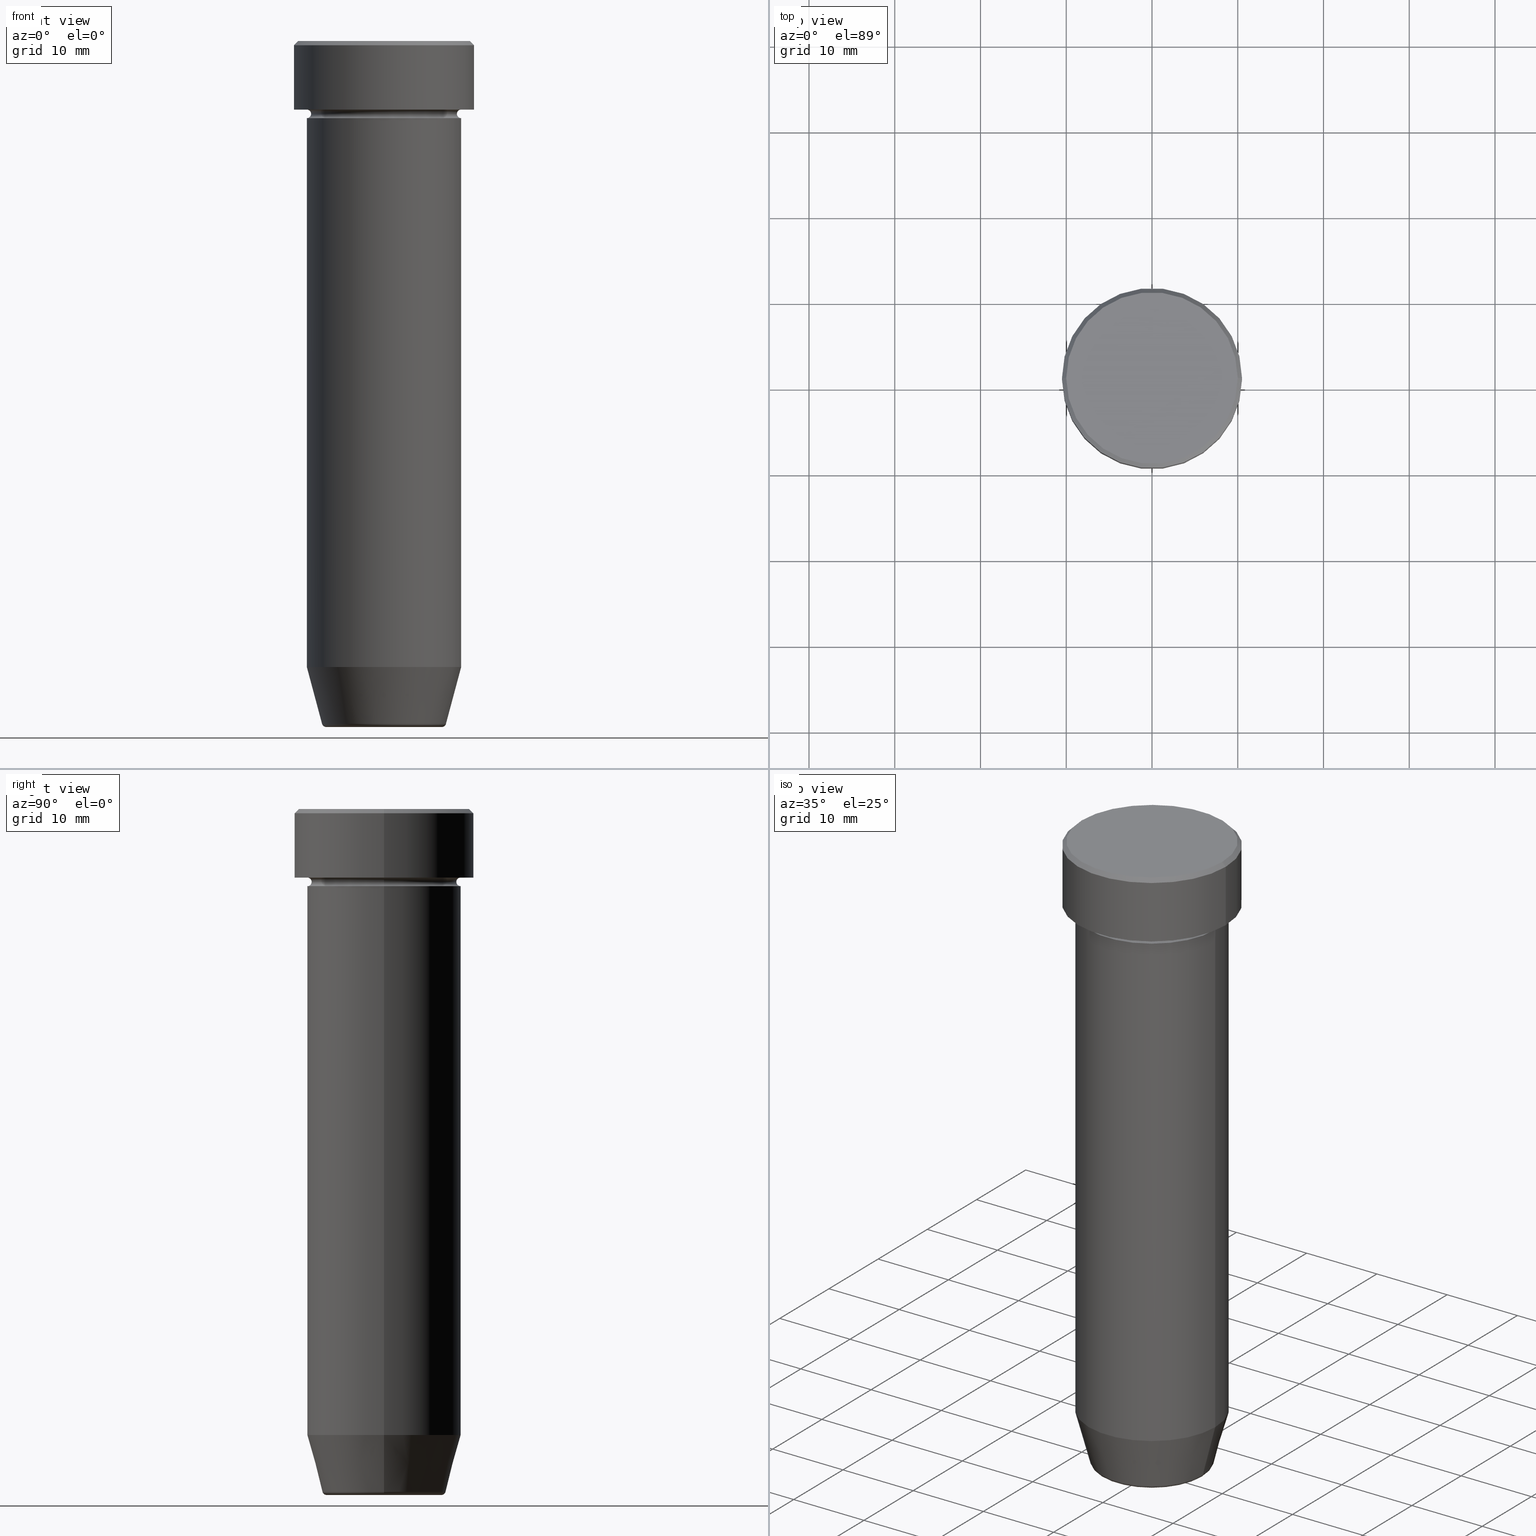
[diagram: canonical four-view strip — front | top / right | iso, engineering-drawing reading convention]
A machine part, canonical four-view strip (front | top / right | iso — engineering-drawing reading convention). The complete STEP part file that produces these views, byte-faithful:
ISO-10303-21;
HEADER;
FILE_DESCRIPTION (( 'STEP AP203' ),
    '1' );
FILE_NAME ('7d79.STEP',
    '2024-01-02T22:08:46',
    ( '' ),
    ( '' ),
    'SwSTEP 2.0',
    'SolidWorks 2019',
    '' );
FILE_SCHEMA (( 'CONFIG_CONTROL_DESIGN' ));
ENDSEC;

DATA;
#1 = FACE_OUTER_BOUND ( 'NONE', #221, .T. ) ;
#2 = VERTEX_POINT ( 'NONE', #560 ) ;
#3 = ADVANCED_FACE ( 'NONE', ( #159 ), #479, .F. ) ;
#4 = VECTOR ( 'NONE', #436, 1000.000000000000000 ) ;
#5 = CONICAL_SURFACE ( 'NONE', #378, 10.00000000000000178, 0.7853981633974447263 ) ;
#6 = AXIS2_PLACEMENT_3D ( 'NONE', #330, #506, #283 ) ;
#7 = ORIENTED_EDGE ( 'NONE', *, *, #570, .F. ) ;
#8 = FACE_OUTER_BOUND ( 'NONE', #315, .T. ) ;
#9 = VERTEX_POINT ( 'NONE', #338 ) ;
#10 = COORDINATED_UNIVERSAL_TIME_OFFSET ( 1, 0, .AHEAD. ) ;
#11 = FACE_OUTER_BOUND ( 'NONE', #300, .T. ) ;
#12 = DIRECTION ( 'NONE',  ( 1.000000000000000000, 0.000000000000000000, 0.000000000000000000 ) ) ;
#13 = AXIS2_PLACEMENT_3D ( 'NONE', #391, #565, #267 ) ;
#14 = VECTOR ( 'NONE', #302, 1000.000000000000000 ) ;
#15 = ORIENTED_EDGE ( 'NONE', *, *, #290, .T. ) ;
#16 = ADVANCED_FACE ( 'NONE', ( #249 ), #255, .T. ) ;
#17 = DIRECTION ( 'NONE',  ( -0.000000000000000000, -0.000000000000000000, 1.000000000000000000 ) ) ;
#18 = DIRECTION ( 'NONE',  ( 1.000000000000000000, 0.000000000000000000, 0.000000000000000000 ) ) ;
#19 = ORIENTED_EDGE ( 'NONE', *, *, #231, .F. ) ;
#20 = DIRECTION ( 'NONE',  ( 0.000000000000000000, -0.000000000000000000, 1.000000000000000000 ) ) ;
#21 = FACE_OUTER_BOUND ( 'NONE', #169, .T. ) ;
#22 = DIRECTION ( 'NONE',  ( -0.000000000000000000, -0.000000000000000000, 1.000000000000000000 ) ) ;
#23 = EDGE_LOOP ( 'NONE', ( #148, #463, #518, #497 ) ) ;
#24 = CIRCLE ( 'NONE', #596, 9.000000000000000000 ) ;
#25 = VECTOR ( 'NONE', #564, 1000.000000000000114 ) ;
#26 = SECURITY_CLASSIFICATION_LEVEL ( 'unclassified' ) ;
#27 = DIRECTION ( 'NONE',  ( 1.000000000000000000, 0.000000000000000000, 0.000000000000000000 ) ) ;
#28 = DIRECTION ( 'NONE',  ( 0.000000000000000000, 0.000000000000000000, -1.000000000000000000 ) ) ;
#29 = ORIENTED_EDGE ( 'NONE', *, *, #77, .F. ) ;
#30 = ADVANCED_FACE ( 'NONE', ( #63 ), #140, .T. ) ;
#31 = CARTESIAN_POINT ( 'NONE',  ( 0.000000000000000000, 0.000000000000000000, 0.000000000000000000 ) ) ;
#32 = VERTEX_POINT ( 'NONE', #577 ) ;
#33 = PERSON_AND_ORGANIZATION_ROLE ( 'creator' ) ;
#34 = AXIS2_PLACEMENT_3D ( 'NONE', #56, #383, #155 ) ;
#35 = CIRCLE ( 'NONE', #81, 9.000000000000000000 ) ;
#36 = DIRECTION ( 'NONE',  ( -0.000000000000000000, -0.000000000000000000, 1.000000000000000000 ) ) ;
#37 = VERTEX_POINT ( 'NONE', #122 ) ;
#38 = SHAPE_DEFINITION_REPRESENTATION ( #87, #50 ) ;
#39 = DIRECTION ( 'NONE',  ( 0.7071067811865450192, 8.659560562354902043E-17, -0.7071067811865500152 ) ) ;
#40 = ORIENTED_EDGE ( 'NONE', *, *, #508, .T. ) ;
#41 = DIRECTION ( 'NONE',  ( 1.000000000000000000, 0.000000000000000000, 0.000000000000000000 ) ) ;
#42 = EDGE_CURVE ( 'NONE', #162, #57, #127, .T. ) ;
#43 = ORIENTED_EDGE ( 'NONE', *, *, #135, .T. ) ;
#44 = VERTEX_POINT ( 'NONE', #348 ) ;
#45 = DIRECTION ( 'NONE',  ( -0.000000000000000000, -0.000000000000000000, 1.000000000000000000 ) ) ;
#46 = TOROIDAL_SURFACE ( 'NONE', #511, 9.000000000000000000, 0.5000000000000000000 ) ;
#47 = ORIENTED_EDGE ( 'NONE', *, *, #117, .T. ) ;
#48 = EDGE_CURVE ( 'NONE', #573, #9, #319, .T. ) ;
#49 = EDGE_LOOP ( 'NONE', ( #328, #47 ) ) ;
#50 = ADVANCED_BREP_SHAPE_REPRESENTATION ( '7d79', ( #468, #71, #550 ), #82 ) ;
#51 = ORIENTED_EDGE ( 'NONE', *, *, #256, .F. ) ;
#52 = EDGE_CURVE ( 'NONE', #423, #277, #465, .T. ) ;
#53 = CIRCLE ( 'NONE', #151, 9.000000000000000000 ) ;
#54 = ORIENTED_EDGE ( 'NONE', *, *, #554, .F. ) ;
#55 = LOCAL_TIME ( 23, 8, 46.00000000000000000, #10 ) ;
#56 = CARTESIAN_POINT ( 'NONE',  ( 0.000000000000000000, 0.000000000000000000, -8.000000000000000000 ) ) ;
#57 = VERTEX_POINT ( 'NONE', #572 ) ;
#58 = ORIENTED_EDGE ( 'NONE', *, *, #217, .T. ) ;
#59 = CARTESIAN_POINT ( 'NONE',  ( -9.000000000000000000, 1.102182119232617714E-15, 0.000000000000000000 ) ) ;
#60 = ADVANCED_FACE ( 'NONE', ( #164 ), #413, .T. ) ;
#61 = EDGE_LOOP ( 'NONE', ( #446, #15, #7, #406 ) ) ;
#62 = DIRECTION ( 'NONE',  ( 0.000000000000000000, 0.000000000000000000, -1.000000000000000000 ) ) ;
#63 = FACE_OUTER_BOUND ( 'NONE', #469, .T. ) ;
#64 = DESIGN_CONTEXT ( 'detailed design', #352, 'design' ) ;
#65 = TOROIDAL_SURFACE ( 'NONE', #213, 6.740692158992655614, 0.5000000000000000000 ) ;
#66 = ORIENTED_EDGE ( 'NONE', *, *, #231, .T. ) ;
#67 = LOCAL_TIME ( 23, 8, 46.00000000000000000, #441 ) ;
#68 = PERSON_AND_ORGANIZATION_ROLE ( 'creator' ) ;
#69 = DIRECTION ( 'NONE',  ( 1.000000000000000000, 0.000000000000000000, 0.000000000000000000 ) ) ;
#70 = VERTEX_POINT ( 'NONE', #536 ) ;
#71 = MANIFOLD_SOLID_BREP ( 'Zaoblit4', #185 ) ;
#72 = FACE_OUTER_BOUND ( 'NONE', #128, .T. ) ;
#73 = DIRECTION ( 'NONE',  ( 1.000000000000000000, 0.000000000000000000, 0.000000000000000000 ) ) ;
#74 = EDGE_LOOP ( 'NONE', ( #591, #88 ) ) ;
#75 = DATE_AND_TIME ( #130, #170 ) ;
#76 = DIRECTION ( 'NONE',  ( -1.000000000000000000, 0.000000000000000000, 0.000000000000000000 ) ) ;
#77 = EDGE_CURVE ( 'NONE', #37, #95, #202, .T. ) ;
#78 = CARTESIAN_POINT ( 'NONE',  ( 0.000000000000000000, 0.000000000000000000, -80.00000000000000000 ) ) ;
#79 = EDGE_LOOP ( 'NONE', ( #58, #372, #93, #98 ) ) ;
#80 = VECTOR ( 'NONE', #146, 1000.000000000000000 ) ;
#81 = AXIS2_PLACEMENT_3D ( 'NONE', #598, #45, #517 ) ;
#82 =( GEOMETRIC_REPRESENTATION_CONTEXT ( 3 ) GLOBAL_UNCERTAINTY_ASSIGNED_CONTEXT ( ( #291 ) ) GLOBAL_UNIT_ASSIGNED_CONTEXT ( ( #154, #332, #100 ) ) REPRESENTATION_CONTEXT ( 'NONE', 'WORKASPACE' ) );
#83 = DIRECTION ( 'NONE',  ( 0.000000000000000000, -1.000000000000000000, 0.000000000000000000 ) ) ;
#84 = DIRECTION ( 'NONE',  ( 1.000000000000000000, 0.000000000000000000, 0.000000000000000000 ) ) ;
#85 = ORIENTED_EDGE ( 'NONE', *, *, #453, .F. ) ;
#86 = PERSON_AND_ORGANIZATION ( #360, #450 ) ;
#87 = PRODUCT_DEFINITION_SHAPE ( 'NONE', 'NONE',  #110 ) ;
#88 = ORIENTED_EDGE ( 'NONE', *, *, #48, .F. ) ;
#89 = CARTESIAN_POINT ( 'NONE',  ( 9.000000000000000000, 0.000000000000000000, -22.00000000000000000 ) ) ;
#90 = APPROVAL_STATUS ( 'not_yet_approved' ) ;
#91 = AXIS2_PLACEMENT_3D ( 'NONE', #339, #444, #347 ) ;
#92 = DIRECTION ( 'NONE',  ( 1.000000000000000000, 0.000000000000000000, 0.000000000000000000 ) ) ;
#93 = ORIENTED_EDGE ( 'NONE', *, *, #467, .F. ) ;
#94 = DIRECTION ( 'NONE',  ( 0.000000000000000000, 0.000000000000000000, -1.000000000000000000 ) ) ;
#95 = VERTEX_POINT ( 'NONE', #445 ) ;
#96 = ORIENTED_EDGE ( 'NONE', *, *, #168, .T. ) ;
#97 = EDGE_CURVE ( 'NONE', #57, #162, #400, .T. ) ;
#98 = ORIENTED_EDGE ( 'NONE', *, *, #568, .F. ) ;
#99 = AXIS2_PLACEMENT_3D ( 'NONE', #439, #210, #405 ) ;
#100 =( NAMED_UNIT ( * ) SI_UNIT ( $, .STERADIAN. ) SOLID_ANGLE_UNIT ( ) );
#101 = AXIS2_PLACEMENT_3D ( 'NONE', #397, #109, #163 ) ;
#102 = FACE_OUTER_BOUND ( 'NONE', #269, .T. ) ;
#103 = DIRECTION ( 'NONE',  ( -1.000000000000000000, 0.000000000000000000, -0.000000000000000000 ) ) ;
#104 = DIRECTION ( 'NONE',  ( 1.000000000000000000, 0.000000000000000000, 0.000000000000000000 ) ) ;
#105 = ORIENTED_EDGE ( 'NONE', *, *, #474, .T. ) ;
#106 = CLOSED_SHELL ( 'NONE', ( #276, #238, #424, #367, #516, #194, #349, #578, #191, #131, #336, #535, #376 ) ) ;
#107 = AXIS2_PLACEMENT_3D ( 'NONE', #207, #569, #438 ) ;
#108 = PERSON_AND_ORGANIZATION ( #360, #450 ) ;
#109 = DIRECTION ( 'NONE',  ( 1.224646799147353207E-16, 1.000000000000000000, 0.000000000000000000 ) ) ;
#110 = PRODUCT_DEFINITION ( 'NEZN�M�', '', #379, #64 ) ;
#111 = FACE_OUTER_BOUND ( 'NONE', #566, .T. ) ;
#112 = DIRECTION ( 'NONE',  ( -0.000000000000000000, -0.000000000000000000, 1.000000000000000000 ) ) ;
#113 = EDGE_LOOP ( 'NONE', ( #51, #323, #325, #354 ) ) ;
#114 = CALENDAR_DATE ( 2024, 2, 1 ) ;
#115 = DIRECTION ( 'NONE',  ( -1.000000000000000000, 0.000000000000000000, 0.000000000000000000 ) ) ;
#116 = AXIS2_PLACEMENT_3D ( 'NONE', #464, #123, #76 ) ;
#117 = EDGE_CURVE ( 'NONE', #37, #214, #150, .T. ) ;
#118 = CIRCLE ( 'NONE', #458, 9.000000000000000000 ) ;
#119 = ORIENTED_EDGE ( 'NONE', *, *, #369, .T. ) ;
#120 = CALENDAR_DATE ( 2024, 2, 1 ) ;
#121 = DIRECTION ( 'NONE',  ( 0.000000000000000000, 0.000000000000000000, -1.000000000000000000 ) ) ;
#122 = CARTESIAN_POINT ( 'NONE',  ( -6.740692158992655614, 8.550696569392683709E-16, -80.00000000000000000 ) ) ;
#123 = DIRECTION ( 'NONE',  ( 0.000000000000000000, 0.000000000000000000, -1.000000000000000000 ) ) ;
#124 = DIRECTION ( 'NONE',  ( 1.000000000000000000, 0.000000000000000000, 0.000000000000000000 ) ) ;
#125 = DIRECTION ( 'NONE',  ( -1.000000000000000000, 0.000000000000000000, 0.000000000000000000 ) ) ;
#126 = FACE_OUTER_BOUND ( 'NONE', #264, .T. ) ;
#127 = CIRCLE ( 'NONE', #99, 9.000000000000000000 ) ;
#128 = EDGE_LOOP ( 'NONE', ( #364, #440, #512, #429 ) ) ;
#129 = CIRCLE ( 'NONE', #224, 0.5000000000000004441 ) ;
#130 = CALENDAR_DATE ( 2024, 2, 1 ) ;
#131 = ADVANCED_FACE ( 'NONE', ( #126 ), #522, .T. ) ;
#132 = CYLINDRICAL_SURFACE ( 'NONE', #334, 9.000000000000000000 ) ;
#133 = DIRECTION ( 'NONE',  ( 1.000000000000000000, 0.000000000000000000, 0.000000000000000000 ) ) ;
#134 = CARTESIAN_POINT ( 'NONE',  ( 0.000000000000000000, 0.000000000000000000, -8.000000000000000000 ) ) ;
#135 = EDGE_CURVE ( 'NONE', #32, #408, #212, .T. ) ;
#136 = APPROVAL_ROLE ( '' ) ;
#137 = CARTESIAN_POINT ( 'NONE',  ( 6.740692158992655614, 0.000000000000000000, -79.50000000000000000 ) ) ;
#138 = FACE_OUTER_BOUND ( 'NONE', #459, .T. ) ;
#139 = EDGE_CURVE ( 'NONE', #573, #373, #538, .T. ) ;
#140 = CONICAL_SURFACE ( 'NONE', #307, 7.124355652982136355, 0.2617993877991497964 ) ;
#141 = TOROIDAL_SURFACE ( 'NONE', #268, 9.000000000000000000, 0.5000000000000000000 ) ;
#142 = DIRECTION ( 'NONE',  ( -0.000000000000000000, -1.000000000000000000, -0.000000000000000000 ) ) ;
#143 = LOCAL_TIME ( 23, 8, 46.00000000000000000, #410 ) ;
#144 = ORIENTED_EDGE ( 'NONE', *, *, #181, .T. ) ;
#145 = ORIENTED_EDGE ( 'NONE', *, *, #396, .T. ) ;
#146 = DIRECTION ( 'NONE',  ( -0.000000000000000000, -0.000000000000000000, 1.000000000000000000 ) ) ;
#147 = ORIENTED_EDGE ( 'NONE', *, *, #117, .F. ) ;
#148 = ORIENTED_EDGE ( 'NONE', *, *, #409, .F. ) ;
#149 = EDGE_CURVE ( 'NONE', #423, #534, #293, .T. ) ;
#150 = CIRCLE ( 'NONE', #470, 6.740692158992655614 ) ;
#151 = AXIS2_PLACEMENT_3D ( 'NONE', #390, #211, #27 ) ;
#152 = CC_DESIGN_PERSON_AND_ORGANIZATION_ASSIGNMENT ( #229, #225, ( #379 ) ) ;
#153 = CYLINDRICAL_SURFACE ( 'NONE', #6, 10.50000000000000000 ) ;
#154 =( LENGTH_UNIT ( ) NAMED_UNIT ( * ) SI_UNIT ( .MILLI., .METRE. ) );
#155 = DIRECTION ( 'NONE',  ( -1.000000000000000000, 0.000000000000000000, 0.000000000000000000 ) ) ;
#156 = EDGE_LOOP ( 'NONE', ( #119, #279, #96, #555 ) ) ;
#157 = CIRCLE ( 'NONE', #193, 8.499999999999998224 ) ;
#158 = APPROVAL_PERSON_ORGANIZATION ( #454, #284, #350 ) ;
#159 = FACE_OUTER_BOUND ( 'NONE', #49, .T. ) ;
#160 = FACE_OUTER_BOUND ( 'NONE', #61, .T. ) ;
#161 = DIRECTION ( 'NONE',  ( -0.000000000000000000, -0.000000000000000000, 1.000000000000000000 ) ) ;
#162 = VERTEX_POINT ( 'NONE', #358 ) ;
#163 = DIRECTION ( 'NONE',  ( -1.000000000000000000, 1.224646799147353454E-16, 0.000000000000000000 ) ) ;
#164 = FACE_OUTER_BOUND ( 'NONE', #23, .T. ) ;
#165 = PRODUCT ( '7d79', '7d79', '', ( #443 ) ) ;
#166 = DIRECTION ( 'NONE',  ( -0.000000000000000000, -0.000000000000000000, 1.000000000000000000 ) ) ;
#167 = DIRECTION ( 'NONE',  ( -0.000000000000000000, -0.000000000000000000, 1.000000000000000000 ) ) ;
#168 = EDGE_CURVE ( 'NONE', #373, #236, #509, .T. ) ;
#169 = EDGE_LOOP ( 'NONE', ( #399, #209 ) ) ;
#170 = LOCAL_TIME ( 23, 8, 46.00000000000000000, #263 ) ;
#171 = CARTESIAN_POINT ( 'NONE',  ( 0.000000000000000000, 0.000000000000000000, -8.500000000000000000 ) ) ;
#172 = CARTESIAN_POINT ( 'NONE',  ( 0.000000000000000000, 0.000000000000000000, 0.000000000000000000 ) ) ;
#173 = CYLINDRICAL_SURFACE ( 'NONE', #575, 10.50000000000000000 ) ;
#174 = CARTESIAN_POINT ( 'NONE',  ( -6.740692158992655614, 8.254967076548017297E-16, -79.50000000000000000 ) ) ;
#175 = EDGE_CURVE ( 'NONE', #588, #534, #24, .T. ) ;
#176 = ORIENTED_EDGE ( 'NONE', *, *, #453, .T. ) ;
#177 = AXIS2_PLACEMENT_3D ( 'NONE', #311, #593, #412 ) ;
#178 = APPROVAL_DATE_TIME ( #317, #428 ) ;
#179 = FACE_OUTER_BOUND ( 'NONE', #79, .T. ) ;
#180 = DIRECTION ( 'NONE',  ( -0.000000000000000000, -0.000000000000000000, 1.000000000000000000 ) ) ;
#181 = EDGE_CURVE ( 'NONE', #9, #236, #419, .T. ) ;
#182 = DIRECTION ( 'NONE',  ( -1.000000000000000000, 0.000000000000000000, 0.000000000000000000 ) ) ;
#183 = ORIENTED_EDGE ( 'NONE', *, *, #42, .F. ) ;
#184 = CARTESIAN_POINT ( 'NONE',  ( 9.000000000000000000, 1.102182119232617714E-15, -8.000000000000000000 ) ) ;
#185 = CLOSED_SHELL ( 'NONE', ( #244, #30, #513, #421, #16, #60, #3, #386 ) ) ;
#186 = AXIS2_PLACEMENT_3D ( 'NONE', #404, #520, #478 ) ;
#187 = APPLICATION_PROTOCOL_DEFINITION ( 'international standard', 'config_control_design', 1994, #562 ) ;
#188 = ORIENTED_EDGE ( 'NONE', *, *, #217, .F. ) ;
#189 = VERTEX_POINT ( 'NONE', #542 ) ;
#190 = CARTESIAN_POINT ( 'NONE',  ( 9.000000000000000000, 0.000000000000000000, 0.000000000000000000 ) ) ;
#191 = ADVANCED_FACE ( 'NONE', ( #457, #220 ), #583, .T. ) ;
#192 = VECTOR ( 'NONE', #462, 1000.000000000000000 ) ;
#193 = AXIS2_PLACEMENT_3D ( 'NONE', #532, #17, #401 ) ;
#194 = ADVANCED_FACE ( 'NONE', ( #138 ), #504, .T. ) ;
#195 = EDGE_LOOP ( 'NONE', ( #346, #66 ) ) ;
#196 = DIRECTION ( 'NONE',  ( 0.000000000000000000, 0.000000000000000000, -1.000000000000000000 ) ) ;
#197 = CARTESIAN_POINT ( 'NONE',  ( -9.000000000000000000, 1.102182119232617714E-15, 0.000000000000000000 ) ) ;
#198 = EDGE_LOOP ( 'NONE', ( #253, #43, #551, #486 ) ) ;
#199 = LINE ( 'NONE', #197, #357 ) ;
#200 = EDGE_CURVE ( 'NONE', #32, #189, #199, .T. ) ;
#201 = DATE_AND_TIME ( #114, #55 ) ;
#202 = CIRCLE ( 'NONE', #259, 0.5000000000000004441 ) ;
#203 = LINE ( 'NONE', #490, #25 ) ;
#204 = VECTOR ( 'NONE', #356, 1000.000000000000114 ) ;
#205 = CC_DESIGN_APPROVAL ( #284, ( #379 ) ) ;
#206 = CARTESIAN_POINT ( 'NONE',  ( 0.000000000000000000, 0.000000000000000000, 0.000000000000000000 ) ) ;
#207 = CARTESIAN_POINT ( 'NONE',  ( 0.000000000000000000, 0.000000000000000000, 0.000000000000000000 ) ) ;
#208 = CARTESIAN_POINT ( 'NONE',  ( 0.000000000000000000, 3.673940397442061544E-15, -80.00000000000000000 ) ) ;
#209 = ORIENTED_EDGE ( 'NONE', *, *, #483, .T. ) ;
#210 = DIRECTION ( 'NONE',  ( -0.000000000000000000, -0.000000000000000000, 1.000000000000000000 ) ) ;
#211 = DIRECTION ( 'NONE',  ( -0.000000000000000000, -0.000000000000000000, 1.000000000000000000 ) ) ;
#212 = CIRCLE ( 'NONE', #557, 9.000000000000000000 ) ;
#213 = AXIS2_PLACEMENT_3D ( 'NONE', #341, #166, #435 ) ;
#214 = VERTEX_POINT ( 'NONE', #331 ) ;
#215 = APPROVAL_STATUS ( 'not_yet_approved' ) ;
#216 = DIRECTION ( 'NONE',  ( -0.000000000000000000, -0.000000000000000000, 1.000000000000000000 ) ) ;
#217 = EDGE_CURVE ( 'NONE', #408, #32, #529, .T. ) ;
#218 = ORIENTED_EDGE ( 'NONE', *, *, #139, .F. ) ;
#219 = CARTESIAN_POINT ( 'NONE',  ( 0.000000000000000000, 0.000000000000000000, -8.500000000000000000 ) ) ;
#220 = FACE_OUTER_BOUND ( 'NONE', #74, .T. ) ;
#221 = EDGE_LOOP ( 'NONE', ( #218, #292, #144, #228 ) ) ;
#222 = CARTESIAN_POINT ( 'NONE',  ( 0.000000000000000000, 0.000000000000000000, -22.00000000000000000 ) ) ;
#223 = ORIENTED_EDGE ( 'NONE', *, *, #527, .T. ) ;
#224 = AXIS2_PLACEMENT_3D ( 'NONE', #137, #83, #28 ) ;
#225 = PERSON_AND_ORGANIZATION_ROLE ( 'design_supplier' ) ;
#226 = CARTESIAN_POINT ( 'NONE',  ( 9.000000000000000000, 0.000000000000000000, -73.00000000000000000 ) ) ;
#227 = DIRECTION ( 'NONE',  ( -0.000000000000000000, -0.000000000000000000, 1.000000000000000000 ) ) ;
#228 = ORIENTED_EDGE ( 'NONE', *, *, #554, .T. ) ;
#229 = PERSON_AND_ORGANIZATION ( #360, #450 ) ;
#230 = DIRECTION ( 'NONE',  ( -0.000000000000000000, -0.000000000000000000, 1.000000000000000000 ) ) ;
#231 = EDGE_CURVE ( 'NONE', #534, #588, #327, .T. ) ;
#232 = DIRECTION ( 'NONE',  ( -1.000000000000000000, 0.000000000000000000, -0.000000000000000000 ) ) ;
#233 = EDGE_LOOP ( 'NONE', ( #29, #370, #40, #368 ) ) ;
#234 = DIRECTION ( 'NONE',  ( 0.000000000000000000, 0.000000000000000000, -1.000000000000000000 ) ) ;
#235 = DIRECTION ( 'NONE',  ( 0.000000000000000000, 0.000000000000000000, -1.000000000000000000 ) ) ;
#236 = VERTEX_POINT ( 'NONE', #241 ) ;
#237 = AXIS2_PLACEMENT_3D ( 'NONE', #257, #252, #576 ) ;
#238 = ADVANCED_FACE ( 'NONE', ( #599 ), #377, .F. ) ;
#239 = ORIENTED_EDGE ( 'NONE', *, *, #97, .F. ) ;
#240 = AXIS2_PLACEMENT_3D ( 'NONE', #579, #452, #125 ) ;
#241 = CARTESIAN_POINT ( 'NONE',  ( 10.50000000000000000, 0.000000000000000000, -0.5000000000000023315 ) ) ;
#242 = CARTESIAN_POINT ( 'NONE',  ( 0.000000000000000000, 0.000000000000000000, 0.000000000000000000 ) ) ;
#243 = DIRECTION ( 'NONE',  ( 1.000000000000000000, 0.000000000000000000, 0.000000000000000000 ) ) ;
#244 = ADVANCED_FACE ( 'NONE', ( #8 ), #65, .T. ) ;
#245 = ORIENTED_EDGE ( 'NONE', *, *, #77, .T. ) ;
#246 = AXIS2_PLACEMENT_3D ( 'NONE', #432, #515, #104 ) ;
#247 = AXIS2_PLACEMENT_3D ( 'NONE', #456, #261, #503 ) ;
#248 = APPROVAL_PERSON_ORGANIZATION ( #86, #428, #136 ) ;
#249 = FACE_OUTER_BOUND ( 'NONE', #198, .T. ) ;
#250 = EDGE_LOOP ( 'NONE', ( #553, #273, #384, #85 ) ) ;
#251 = APPROVAL ( #524, 'NEUR�EN�' ) ;
#252 = DIRECTION ( 'NONE',  ( -0.000000000000000000, -0.000000000000000000, 1.000000000000000000 ) ) ;
#253 = ORIENTED_EDGE ( 'NONE', *, *, #200, .F. ) ;
#254 = DIRECTION ( 'NONE',  ( -1.000000000000000000, 0.000000000000000000, 0.000000000000000000 ) ) ;
#255 = CYLINDRICAL_SURFACE ( 'NONE', #574, 9.000000000000000000 ) ;
#256 = EDGE_CURVE ( 'NONE', #505, #423, #157, .T. ) ;
#257 = CARTESIAN_POINT ( 'NONE',  ( 0.000000000000000000, 0.000000000000000000, 0.000000000000000000 ) ) ;
#258 = DIRECTION ( 'NONE',  ( -1.000000000000000000, 1.224646799147353454E-16, 0.000000000000000000 ) ) ;
#259 = AXIS2_PLACEMENT_3D ( 'NONE', #174, #571, #258 ) ;
#260 = CIRCLE ( 'NONE', #329, 10.00000000000000178 ) ;
#261 = DIRECTION ( 'NONE',  ( -0.000000000000000000, -0.000000000000000000, 1.000000000000000000 ) ) ;
#262 = ORIENTED_EDGE ( 'NONE', *, *, #556, .T. ) ;
#263 = COORDINATED_UNIVERSAL_TIME_OFFSET ( 1, 0, .AHEAD. ) ;
#264 = EDGE_LOOP ( 'NONE', ( #499, #275, #523, #594 ) ) ;
#265 = DATE_AND_TIME ( #501, #343 ) ;
#266 = FACE_OUTER_BOUND ( 'NONE', #113, .T. ) ;
#267 = DIRECTION ( 'NONE',  ( -1.000000000000000000, -1.224646799147353454E-16, 0.000000000000000000 ) ) ;
#268 = AXIS2_PLACEMENT_3D ( 'NONE', #171, #448, #289 ) ;
#269 = EDGE_LOOP ( 'NONE', ( #584, #145, #176, #19 ) ) ;
#270 = SECURITY_CLASSIFICATION ( '', '', #26 ) ;
#271 = CALENDAR_DATE ( 2024, 2, 1 ) ;
#272 = LINE ( 'NONE', #461, #285 ) ;
#273 = ORIENTED_EDGE ( 'NONE', *, *, #149, .T. ) ;
#274 = CARTESIAN_POINT ( 'NONE',  ( 8.499999999999998224, 0.000000000000000000, -8.500000000000000000 ) ) ;
#275 = ORIENTED_EDGE ( 'NONE', *, *, #97, .T. ) ;
#276 = ADVANCED_FACE ( 'NONE', ( #11 ), #320, .T. ) ;
#277 = VERTEX_POINT ( 'NONE', #393 ) ;
#278 = AXIS2_PLACEMENT_3D ( 'NONE', #206, #112, #580 ) ;
#279 = ORIENTED_EDGE ( 'NONE', *, *, #139, .T. ) ;
#280 = CIRCLE ( 'NONE', #359, 10.50000000000000000 ) ;
#281 = DIRECTION ( 'NONE',  ( 1.000000000000000000, 0.000000000000000000, 0.000000000000000000 ) ) ;
#282 = CARTESIAN_POINT ( 'NONE',  ( 0.000000000000000000, 9.000000000000000000, -22.00000000000000000 ) ) ;
#283 = DIRECTION ( 'NONE',  ( 1.000000000000000000, 0.000000000000000000, 0.000000000000000000 ) ) ;
#284 = APPROVAL ( #215, 'NEUR�EN�' ) ;
#285 = VECTOR ( 'NONE', #39, 1000.000000000000000 ) ;
#286 = DIRECTION ( 'NONE',  ( 0.000000000000000000, 0.000000000000000000, -1.000000000000000000 ) ) ;
#287 = PERSON_AND_ORGANIZATION ( #360, #450 ) ;
#288 = ORIENTED_EDGE ( 'NONE', *, *, #301, .T. ) ;
#289 = DIRECTION ( 'NONE',  ( 1.000000000000000000, 0.000000000000000000, 0.000000000000000000 ) ) ;
#290 = EDGE_CURVE ( 'NONE', #57, #70, #485, .T. ) ;
#291 = UNCERTAINTY_MEASURE_WITH_UNIT (LENGTH_MEASURE( 1.000000000000000082E-05 ), #154, 'distance_accuracy_value', 'NONE');
#292 = ORIENTED_EDGE ( 'NONE', *, *, #48, .T. ) ;
#293 = CIRCLE ( 'NONE', #13, 0.5000000000000004441 ) ;
#294 = PLANE ( 'NONE',  #107 ) ;
#295 = AXIS2_PLACEMENT_3D ( 'NONE', #351, #230, #362 ) ;
#296 = APPROVAL_PERSON_ORGANIZATION ( #287, #251, #477 ) ;
#297 = ORIENTED_EDGE ( 'NONE', *, *, #306, .F. ) ;
#298 = DIRECTION ( 'NONE',  ( -0.000000000000000000, -0.000000000000000000, 1.000000000000000000 ) ) ;
#299 = DIRECTION ( 'NONE',  ( 1.000000000000000000, 0.000000000000000000, 0.000000000000000000 ) ) ;
#300 = EDGE_LOOP ( 'NONE', ( #476, #223, #592, #434 ) ) ;
#301 = EDGE_CURVE ( 'NONE', #433, #373, #337, .T. ) ;
#302 = DIRECTION ( 'NONE',  ( -0.7071067811865450192, 0.000000000000000000, -0.7071067811865500152 ) ) ;
#303 = CARTESIAN_POINT ( 'NONE',  ( 0.000000000000000000, 0.000000000000000000, -80.00000000000000000 ) ) ;
#304 = ORIENTED_EDGE ( 'NONE', *, *, #474, .F. ) ;
#305 = PLANE ( 'NONE',  #309 ) ;
#306 = EDGE_CURVE ( 'NONE', #2, #408, #203, .T. ) ;
#307 = AXIS2_PLACEMENT_3D ( 'NONE', #303, #533, #243 ) ;
#308 = CARTESIAN_POINT ( 'NONE',  ( -10.50000000000000000, 1.285879139104720831E-15, 0.000000000000000000 ) ) ;
#309 = AXIS2_PLACEMENT_3D ( 'NONE', #541, #94, #587 ) ;
#310 = DATE_TIME_ROLE ( 'creation_date' ) ;
#311 = CARTESIAN_POINT ( 'NONE',  ( 0.000000000000000000, 0.000000000000000000, -79.62940952255127058 ) ) ;
#312 = EDGE_LOOP ( 'NONE', ( #395, #262 ) ) ;
#313 = FACE_OUTER_BOUND ( 'NONE', #156, .T. ) ;
#314 = CARTESIAN_POINT ( 'NONE',  ( 10.50000000000000000, 0.000000000000000000, 0.000000000000000000 ) ) ;
#315 = EDGE_LOOP ( 'NONE', ( #147, #245, #304, #381 ) ) ;
#316 = CC_DESIGN_PERSON_AND_ORGANIZATION_ASSIGNMENT ( #355, #33, ( #379 ) ) ;
#317 = DATE_AND_TIME ( #271, #143 ) ;
#318 = LINE ( 'NONE', #407, #204 ) ;
#319 = CIRCLE ( 'NONE', #585, 10.50000000000000000 ) ;
#320 = CONICAL_SURFACE ( 'NONE', #414, 10.00000000000000178, 0.7853981633974447263 ) ;
#321 = EDGE_CURVE ( 'NONE', #433, #44, #449, .T. ) ;
#322 = CARTESIAN_POINT ( 'NONE',  ( 0.000000000000000000, 0.000000000000000000, 0.000000000000000000 ) ) ;
#323 = ORIENTED_EDGE ( 'NONE', *, *, #326, .T. ) ;
#324 = LINE ( 'NONE', #190, #80 ) ;
#325 = ORIENTED_EDGE ( 'NONE', *, *, #363, .T. ) ;
#326 = EDGE_CURVE ( 'NONE', #505, #70, #402, .T. ) ;
#327 = CIRCLE ( 'NONE', #34, 9.000000000000000000 ) ;
#328 = ORIENTED_EDGE ( 'NONE', *, *, #345, .T. ) ;
#329 = AXIS2_PLACEMENT_3D ( 'NONE', #322, #365, #545 ) ;
#330 = CARTESIAN_POINT ( 'NONE',  ( 0.000000000000000000, 0.000000000000000000, 0.000000000000000000 ) ) ;
#331 = CARTESIAN_POINT ( 'NONE',  ( 6.740692158992655614, 0.000000000000000000, -80.00000000000000000 ) ) ;
#332 =( NAMED_UNIT ( * ) PLANE_ANGLE_UNIT ( ) SI_UNIT ( $, .RADIAN. ) );
#333 = AXIS2_PLACEMENT_3D ( 'NONE', #590, #366, #232 ) ;
#334 = AXIS2_PLACEMENT_3D ( 'NONE', #31, #543, #133 ) ;
#335 = CYLINDRICAL_SURFACE ( 'NONE', #530, 9.000000000000000000 ) ;
#336 = ADVANCED_FACE ( 'NONE', ( #72 ), #141, .F. ) ;
#337 = LINE ( 'NONE', #488, #14 ) ;
#338 = CARTESIAN_POINT ( 'NONE',  ( 10.50000000000000000, 0.000000000000000000, -8.000000000000000000 ) ) ;
#339 = CARTESIAN_POINT ( 'NONE',  ( 0.000000000000000000, 0.000000000000000000, -80.00000000000000000 ) ) ;
#340 = CARTESIAN_POINT ( 'NONE',  ( 0.000000000000000000, 0.000000000000000000, -22.00000000000000000 ) ) ;
#341 = CARTESIAN_POINT ( 'NONE',  ( 0.000000000000000000, 0.000000000000000000, -79.50000000000000000 ) ) ;
#342 = CIRCLE ( 'NONE', #247, 8.499999999999998224 ) ;
#343 = LOCAL_TIME ( 23, 8, 46.00000000000000000, #544 ) ;
#344 = DIRECTION ( 'NONE',  ( -0.000000000000000000, -0.000000000000000000, 1.000000000000000000 ) ) ;
#345 = EDGE_CURVE ( 'NONE', #214, #37, #540, .T. ) ;
#346 = ORIENTED_EDGE ( 'NONE', *, *, #175, .T. ) ;
#347 = DIRECTION ( 'NONE',  ( 1.000000000000000000, 0.000000000000000000, 0.000000000000000000 ) ) ;
#348 = CARTESIAN_POINT ( 'NONE',  ( 10.00000000000000178, 1.255262969126037241E-15, 0.000000000000000000 ) ) ;
#349 = ADVANCED_FACE ( 'NONE', ( #21 ), #294, .T. ) ;
#350 = APPROVAL_ROLE ( '' ) ;
#351 = CARTESIAN_POINT ( 'NONE',  ( 0.000000000000000000, 0.000000000000000000, -79.50000000000000000 ) ) ;
#352 = APPLICATION_CONTEXT ( 'configuration controlled 3d designs of mechanical parts and assemblies' ) ;
#353 = DIRECTION ( 'NONE',  ( -0.000000000000000000, -0.000000000000000000, 1.000000000000000000 ) ) ;
#354 = ORIENTED_EDGE ( 'NONE', *, *, #52, .F. ) ;
#355 = PERSON_AND_ORGANIZATION ( #360, #450 ) ;
#356 = DIRECTION ( 'NONE',  ( -0.2588190451025210725, 3.169619151431769255E-17, 0.9659258262890680902 ) ) ;
#357 = VECTOR ( 'NONE', #475, 1000.000000000000000 ) ;
#358 = CARTESIAN_POINT ( 'NONE',  ( 9.000000000000000000, 0.000000000000000000, -22.00000000000000000 ) ) ;
#359 = AXIS2_PLACEMENT_3D ( 'NONE', #425, #559, #281 ) ;
#360 = PERSON ( 'NEUR�EN�', 'NEUR�EN�', 'NEUR�EN�', ('NEUR�EN�'), ('NEUR�EN�'), ('NEUR�EN�') ) ;
#361 = PRODUCT_RELATED_PRODUCT_CATEGORY ( 'detail', '', ( #165 ) ) ;
#362 = DIRECTION ( 'NONE',  ( 1.000000000000000000, 0.000000000000000000, 0.000000000000000000 ) ) ;
#363 = EDGE_CURVE ( 'NONE', #70, #277, #53, .T. ) ;
#364 = ORIENTED_EDGE ( 'NONE', *, *, #326, .F. ) ;
#365 = DIRECTION ( 'NONE',  ( -0.000000000000000000, -0.000000000000000000, 1.000000000000000000 ) ) ;
#366 = DIRECTION ( 'NONE',  ( 0.000000000000000000, 0.000000000000000000, -1.000000000000000000 ) ) ;
#367 = ADVANCED_FACE ( 'NONE', ( #160 ), #335, .T. ) ;
#368 = ORIENTED_EDGE ( 'NONE', *, *, #411, .F. ) ;
#369 = EDGE_CURVE ( 'NONE', #9, #573, #561, .T. ) ;
#370 = ORIENTED_EDGE ( 'NONE', *, *, #345, .F. ) ;
#371 = CARTESIAN_POINT ( 'NONE',  ( -9.000000000000000000, 0.000000000000000000, -8.000000000000000000 ) ) ;
#372 = ORIENTED_EDGE ( 'NONE', *, *, #200, .T. ) ;
#373 = VERTEX_POINT ( 'NONE', #521 ) ;
#374 = LINE ( 'NONE', #431, #586 ) ;
#375 = DIRECTION ( 'NONE',  ( 1.000000000000000000, 0.000000000000000000, 0.000000000000000000 ) ) ;
#376 = ADVANCED_FACE ( 'NONE', ( #111 ), #5, .T. ) ;
#377 = TOROIDAL_SURFACE ( 'NONE', #116, 9.000000000000000000, 0.5000000000000000000 ) ;
#378 = AXIS2_PLACEMENT_3D ( 'NONE', #481, #62, #115 ) ;
#379 = PRODUCT_DEFINITION_FORMATION_WITH_SPECIFIED_SOURCE ( 'LIBOVOLN�', '', #165, .NOT_KNOWN. ) ;
#380 = CC_DESIGN_PERSON_AND_ORGANIZATION_ASSIGNMENT ( #563, #68, ( #110 ) ) ;
#381 = ORIENTED_EDGE ( 'NONE', *, *, #508, .F. ) ;
#382 = CARTESIAN_POINT ( 'NONE',  ( 0.000000000000000000, 0.000000000000000000, -9.000000000000001776 ) ) ;
#383 = DIRECTION ( 'NONE',  ( -0.000000000000000000, -0.000000000000000000, 1.000000000000000000 ) ) ;
#384 = ORIENTED_EDGE ( 'NONE', *, *, #175, .F. ) ;
#385 = DIRECTION ( 'NONE',  ( 1.000000000000000000, 0.000000000000000000, 0.000000000000000000 ) ) ;
#386 = ADVANCED_FACE ( 'NONE', ( #582 ), #519, .T. ) ;
#387 = AXIS2_PLACEMENT_3D ( 'NONE', #208, #20, #69 ) ;
#388 = AXIS2_PLACEMENT_3D ( 'NONE', #494, #142, #234 ) ;
#389 = APPROVAL_DATE_TIME ( #201, #251 ) ;
#390 = CARTESIAN_POINT ( 'NONE',  ( 0.000000000000000000, 0.000000000000000000, -9.000000000000001776 ) ) ;
#391 = CARTESIAN_POINT ( 'NONE',  ( 9.000000000000000000, 1.102182119232617714E-15, -8.500000000000000000 ) ) ;
#392 = DIRECTION ( 'NONE',  ( 0.000000000000000000, 0.000000000000000000, 1.000000000000000000 ) ) ;
#393 = CARTESIAN_POINT ( 'NONE',  ( 9.000000000000000000, 0.000000000000000000, -9.000000000000001776 ) ) ;
#394 = CARTESIAN_POINT ( 'NONE',  ( 9.000000000000000000, 0.000000000000000000, -8.500000000000000000 ) ) ;
#395 = ORIENTED_EDGE ( 'NONE', *, *, #467, .T. ) ;
#396 = EDGE_CURVE ( 'NONE', #423, #505, #342, .T. ) ;
#397 = CARTESIAN_POINT ( 'NONE',  ( -9.000000000000000000, 1.102182119232617714E-15, -8.500000000000000000 ) ) ;
#398 = DIRECTION ( 'NONE',  ( 0.000000000000000000, -1.000000000000000000, 0.000000000000000000 ) ) ;
#399 = ORIENTED_EDGE ( 'NONE', *, *, #321, .T. ) ;
#400 = CIRCLE ( 'NONE', #437, 9.000000000000000000 ) ;
#401 = DIRECTION ( 'NONE',  ( 1.000000000000000000, 0.000000000000000000, 0.000000000000000000 ) ) ;
#402 = CIRCLE ( 'NONE', #101, 0.5000000000000004441 ) ;
#403 = DIRECTION ( 'NONE',  ( 0.000000000000000000, 0.000000000000000000, -1.000000000000000000 ) ) ;
#404 = CARTESIAN_POINT ( 'NONE',  ( 0.000000000000000000, 0.000000000000000000, -8.000000000000000000 ) ) ;
#405 = DIRECTION ( 'NONE',  ( 1.000000000000000000, 0.000000000000000000, 0.000000000000000000 ) ) ;
#406 = ORIENTED_EDGE ( 'NONE', *, *, #581, .F. ) ;
#407 = CARTESIAN_POINT ( 'NONE',  ( -7.124355652982136355, 8.724819346411924116E-16, -80.00000000000000000 ) ) ;
#408 = VERTEX_POINT ( 'NONE', #226 ) ;
#409 = EDGE_CURVE ( 'NONE', #95, #32, #318, .T. ) ;
#410 = COORDINATED_UNIVERSAL_TIME_OFFSET ( 1, 0, .AHEAD. ) ;
#411 = EDGE_CURVE ( 'NONE', #95, #2, #493, .T. ) ;
#412 = DIRECTION ( 'NONE',  ( -1.000000000000000000, 0.000000000000000000, 0.000000000000000000 ) ) ;
#413 = CONICAL_SURFACE ( 'NONE', #447, 7.124355652982136355, 0.2617993877991497964 ) ;
#414 = AXIS2_PLACEMENT_3D ( 'NONE', #242, #121, #254 ) ;
#415 = CC_DESIGN_APPROVAL ( #428, ( #270 ) ) ;
#416 = VERTEX_POINT ( 'NONE', #89 ) ;
#417 = PERSON_AND_ORGANIZATION ( #360, #450 ) ;
#418 = CARTESIAN_POINT ( 'NONE',  ( -10.00000000000000178, 0.000000000000000000, 0.000000000000000000 ) ) ;
#419 = LINE ( 'NONE', #314, #192 ) ;
#420 = DIRECTION ( 'NONE',  ( -0.000000000000000000, -0.000000000000000000, 1.000000000000000000 ) ) ;
#421 = ADVANCED_FACE ( 'NONE', ( #547 ), #305, .F. ) ;
#422 = TOROIDAL_SURFACE ( 'NONE', #558, 9.000000000000000000, 0.5000000000000000000 ) ;
#423 = VERTEX_POINT ( 'NONE', #274 ) ;
#424 = ADVANCED_FACE ( 'NONE', ( #266 ), #46, .F. ) ;
#425 = CARTESIAN_POINT ( 'NONE',  ( 0.000000000000000000, 0.000000000000000000, -0.5000000000000023315 ) ) ;
#426 = ORIENTED_EDGE ( 'NONE', *, *, #321, .F. ) ;
#427 = DIRECTION ( 'NONE',  ( -0.000000000000000000, -0.000000000000000000, 1.000000000000000000 ) ) ;
#428 = APPROVAL ( #90, 'NEUR�EN�' ) ;
#429 = ORIENTED_EDGE ( 'NONE', *, *, #570, .T. ) ;
#430 = AXIS2_PLACEMENT_3D ( 'NONE', #222, #180, #589 ) ;
#431 = CARTESIAN_POINT ( 'NONE',  ( 9.000000000000000000, 0.000000000000000000, 0.000000000000000000 ) ) ;
#432 = CARTESIAN_POINT ( 'NONE',  ( 0.000000000000000000, 0.000000000000000000, -73.00000000000000000 ) ) ;
#433 = VERTEX_POINT ( 'NONE', #418 ) ;
#434 = ORIENTED_EDGE ( 'NONE', *, *, #301, .F. ) ;
#435 = DIRECTION ( 'NONE',  ( 1.000000000000000000, 0.000000000000000000, 0.000000000000000000 ) ) ;
#436 = DIRECTION ( 'NONE',  ( -0.000000000000000000, -0.000000000000000000, 1.000000000000000000 ) ) ;
#437 = AXIS2_PLACEMENT_3D ( 'NONE', #340, #22, #124 ) ;
#438 = DIRECTION ( 'NONE',  ( 1.000000000000000000, 0.000000000000000000, 0.000000000000000000 ) ) ;
#439 = CARTESIAN_POINT ( 'NONE',  ( 0.000000000000000000, 0.000000000000000000, -22.00000000000000000 ) ) ;
#440 = ORIENTED_EDGE ( 'NONE', *, *, #396, .F. ) ;
#441 = COORDINATED_UNIVERSAL_TIME_OFFSET ( 1, 0, .AHEAD. ) ;
#442 = CARTESIAN_POINT ( 'NONE',  ( 0.000000000000000000, 0.000000000000000000, 0.000000000000000000 ) ) ;
#443 = MECHANICAL_CONTEXT ( 'NONE', #562, 'mechanical' ) ;
#444 = DIRECTION ( 'NONE',  ( 0.000000000000000000, 0.000000000000000000, -1.000000000000000000 ) ) ;
#445 = CARTESIAN_POINT ( 'NONE',  ( -7.223655072137189492, 9.934123627281765110E-16, -79.62940952255127058 ) ) ;
#446 = ORIENTED_EDGE ( 'NONE', *, *, #42, .T. ) ;
#447 = AXIS2_PLACEMENT_3D ( 'NONE', #489, #161, #73 ) ;
#448 = DIRECTION ( 'NONE',  ( -0.000000000000000000, -0.000000000000000000, 1.000000000000000000 ) ) ;
#449 = CIRCLE ( 'NONE', #237, 10.00000000000000178 ) ;
#450 = ORGANIZATION ( 'NEUR�EN�', 'NEUR�EN�', '' ) ;
#451 = DIRECTION ( 'NONE',  ( 1.000000000000000000, 0.000000000000000000, 0.000000000000000000 ) ) ;
#452 = DIRECTION ( 'NONE',  ( -0.000000000000000000, -0.000000000000000000, 1.000000000000000000 ) ) ;
#453 = EDGE_CURVE ( 'NONE', #505, #588, #549, .T. ) ;
#454 = PERSON_AND_ORGANIZATION ( #360, #450 ) ;
#455 = DATE_AND_TIME ( #120, #67 ) ;
#456 = CARTESIAN_POINT ( 'NONE',  ( 0.000000000000000000, 0.000000000000000000, -8.500000000000000000 ) ) ;
#457 = FACE_BOUND ( 'NONE', #195, .T. ) ;
#458 = AXIS2_PLACEMENT_3D ( 'NONE', #382, #427, #375 ) ;
#459 = EDGE_LOOP ( 'NONE', ( #183, #239 ) ) ;
#460 = APPROVAL_DATE_TIME ( #265, #284 ) ;
#461 = CARTESIAN_POINT ( 'NONE',  ( 10.00000000000000178, 1.224646799147353454E-15, 0.000000000000000000 ) ) ;
#462 = DIRECTION ( 'NONE',  ( -0.000000000000000000, -0.000000000000000000, 1.000000000000000000 ) ) ;
#463 = ORIENTED_EDGE ( 'NONE', *, *, #411, .T. ) ;
#464 = CARTESIAN_POINT ( 'NONE',  ( 0.000000000000000000, 0.000000000000000000, -8.500000000000000000 ) ) ;
#465 = CIRCLE ( 'NONE', #595, 0.5000000000000004441 ) ;
#466 = VECTOR ( 'NONE', #298, 1000.000000000000000 ) ;
#467 = EDGE_CURVE ( 'NONE', #416, #189, #597, .T. ) ;
#468 = MANIFOLD_SOLID_BREP ( 'Zkosen�1', #106 ) ;
#469 = EDGE_LOOP ( 'NONE', ( #105, #500, #188, #297 ) ) ;
#470 = AXIS2_PLACEMENT_3D ( 'NONE', #78, #526, #451 ) ;
#471 = CIRCLE ( 'NONE', #177, 7.223655072137189492 ) ;
#472 = CC_DESIGN_SECURITY_CLASSIFICATION ( #270, ( #379 ) ) ;
#473 = CARTESIAN_POINT ( 'NONE',  ( -10.50000000000000000, 1.285879139104720831E-15, -8.000000000000000000 ) ) ;
#474 = EDGE_CURVE ( 'NONE', #2, #95, #471, .T. ) ;
#475 = DIRECTION ( 'NONE',  ( -0.000000000000000000, -0.000000000000000000, 1.000000000000000000 ) ) ;
#476 = ORIENTED_EDGE ( 'NONE', *, *, #483, .F. ) ;
#477 = APPROVAL_ROLE ( '' ) ;
#478 = DIRECTION ( 'NONE',  ( 1.000000000000000000, 0.000000000000000000, 0.000000000000000000 ) ) ;
#479 = PLANE ( 'NONE',  #387 ) ;
#480 = CARTESIAN_POINT ( 'NONE',  ( 0.000000000000000000, 0.000000000000000000, 0.000000000000000000 ) ) ;
#481 = CARTESIAN_POINT ( 'NONE',  ( 0.000000000000000000, 0.000000000000000000, 0.000000000000000000 ) ) ;
#482 = CARTESIAN_POINT ( 'NONE',  ( 0.000000000000000000, 0.000000000000000000, -73.00000000000000000 ) ) ;
#483 = EDGE_CURVE ( 'NONE', #44, #433, #260, .T. ) ;
#484 = CC_DESIGN_APPROVAL ( #251, ( #110 ) ) ;
#485 = LINE ( 'NONE', #59, #466 ) ;
#486 = ORIENTED_EDGE ( 'NONE', *, *, #556, .F. ) ;
#487 = CC_DESIGN_DATE_AND_TIME_ASSIGNMENT ( #75, #495, ( #270 ) ) ;
#488 = CARTESIAN_POINT ( 'NONE',  ( -10.00000000000000178, 0.000000000000000000, 0.000000000000000000 ) ) ;
#489 = CARTESIAN_POINT ( 'NONE',  ( 0.000000000000000000, 0.000000000000000000, -80.00000000000000000 ) ) ;
#490 = CARTESIAN_POINT ( 'NONE',  ( 7.124355652982136355, 0.000000000000000000, -80.00000000000000000 ) ) ;
#491 = CARTESIAN_POINT ( 'NONE',  ( 0.000000000000000000, 0.000000000000000000, -8.000000000000000000 ) ) ;
#492 = AXIS2_PLACEMENT_3D ( 'NONE', #282, #286, #103 ) ;
#493 = CIRCLE ( 'NONE', #240, 7.223655072137189492 ) ;
#494 = CARTESIAN_POINT ( 'NONE',  ( -9.000000000000000000, 0.000000000000000000, -8.500000000000000000 ) ) ;
#495 = DATE_TIME_ROLE ( 'classification_date' ) ;
#496 = CARTESIAN_POINT ( 'NONE',  ( -8.499999999999998224, 1.071565949253933927E-15, -8.500000000000000000 ) ) ;
#497 = ORIENTED_EDGE ( 'NONE', *, *, #135, .F. ) ;
#498 = CARTESIAN_POINT ( 'NONE',  ( 0.000000000000000000, 0.000000000000000000, 0.000000000000000000 ) ) ;
#499 = ORIENTED_EDGE ( 'NONE', *, *, #290, .F. ) ;
#500 = ORIENTED_EDGE ( 'NONE', *, *, #409, .T. ) ;
#501 = CALENDAR_DATE ( 2024, 2, 1 ) ;
#502 = CC_DESIGN_DATE_AND_TIME_ASSIGNMENT ( #455, #310, ( #110 ) ) ;
#503 = DIRECTION ( 'NONE',  ( 1.000000000000000000, 0.000000000000000000, 0.000000000000000000 ) ) ;
#504 = PLANE ( 'NONE',  #492 ) ;
#505 = VERTEX_POINT ( 'NONE', #496 ) ;
#506 = DIRECTION ( 'NONE',  ( -0.000000000000000000, -0.000000000000000000, 1.000000000000000000 ) ) ;
#507 = DIRECTION ( 'NONE',  ( -0.000000000000000000, -0.000000000000000000, 1.000000000000000000 ) ) ;
#508 = EDGE_CURVE ( 'NONE', #214, #2, #129, .T. ) ;
#509 = CIRCLE ( 'NONE', #548, 10.50000000000000000 ) ;
#510 = CC_DESIGN_PERSON_AND_ORGANIZATION_ASSIGNMENT ( #417, #539, ( #270 ) ) ;
#511 = AXIS2_PLACEMENT_3D ( 'NONE', #219, #36, #41 ) ;
#512 = ORIENTED_EDGE ( 'NONE', *, *, #52, .T. ) ;
#513 = ADVANCED_FACE ( 'NONE', ( #179 ), #132, .T. ) ;
#514 = CARTESIAN_POINT ( 'NONE',  ( 0.000000000000000000, 0.000000000000000000, -8.500000000000000000 ) ) ;
#515 = DIRECTION ( 'NONE',  ( -0.000000000000000000, -0.000000000000000000, 1.000000000000000000 ) ) ;
#516 = ADVANCED_FACE ( 'NONE', ( #313 ), #173, .T. ) ;
#517 = DIRECTION ( 'NONE',  ( 1.000000000000000000, 0.000000000000000000, 0.000000000000000000 ) ) ;
#518 = ORIENTED_EDGE ( 'NONE', *, *, #306, .T. ) ;
#519 = TOROIDAL_SURFACE ( 'NONE', #295, 6.740692158992655614, 0.5000000000000000000 ) ;
#520 = DIRECTION ( 'NONE',  ( -0.000000000000000000, -0.000000000000000000, 1.000000000000000000 ) ) ;
#521 = CARTESIAN_POINT ( 'NONE',  ( -10.50000000000000000, 1.285879139104720831E-15, -0.5000000000000023315 ) ) ;
#522 = CYLINDRICAL_SURFACE ( 'NONE', #278, 9.000000000000000000 ) ;
#523 = ORIENTED_EDGE ( 'NONE', *, *, #581, .T. ) ;
#524 = APPROVAL_STATUS ( 'not_yet_approved' ) ;
#525 = DIRECTION ( 'NONE',  ( 1.000000000000000000, 0.000000000000000000, 0.000000000000000000 ) ) ;
#526 = DIRECTION ( 'NONE',  ( 0.000000000000000000, 0.000000000000000000, -1.000000000000000000 ) ) ;
#527 = EDGE_CURVE ( 'NONE', #44, #236, #272, .T. ) ;
#528 = ORIENTED_EDGE ( 'NONE', *, *, #527, .F. ) ;
#529 = CIRCLE ( 'NONE', #246, 9.000000000000000000 ) ;
#530 = AXIS2_PLACEMENT_3D ( 'NONE', #442, #216, #525 ) ;
#531 = APPLICATION_PROTOCOL_DEFINITION ( 'international standard', 'config_control_design', 1994, #352 ) ;
#532 = CARTESIAN_POINT ( 'NONE',  ( 0.000000000000000000, 0.000000000000000000, -8.500000000000000000 ) ) ;
#533 = DIRECTION ( 'NONE',  ( -0.000000000000000000, -0.000000000000000000, 1.000000000000000000 ) ) ;
#534 = VERTEX_POINT ( 'NONE', #184 ) ;
#535 = ADVANCED_FACE ( 'NONE', ( #102 ), #422, .F. ) ;
#536 = CARTESIAN_POINT ( 'NONE',  ( -9.000000000000000000, 1.102182119232617714E-15, -9.000000000000001776 ) ) ;
#537 = CC_DESIGN_PERSON_AND_ORGANIZATION_ASSIGNMENT ( #108, #567, ( #165 ) ) ;
#538 = LINE ( 'NONE', #308, #4 ) ;
#539 = PERSON_AND_ORGANIZATION_ROLE ( 'classification_officer' ) ;
#540 = CIRCLE ( 'NONE', #91, 6.740692158992655614 ) ;
#541 = CARTESIAN_POINT ( 'NONE',  ( 0.000000000000000000, 0.000000000000000000, -22.00000000000000000 ) ) ;
#542 = CARTESIAN_POINT ( 'NONE',  ( -9.000000000000000000, 1.102182119232617714E-15, -22.00000000000000000 ) ) ;
#543 = DIRECTION ( 'NONE',  ( -0.000000000000000000, -0.000000000000000000, 1.000000000000000000 ) ) ;
#544 = COORDINATED_UNIVERSAL_TIME_OFFSET ( 1, 0, .AHEAD. ) ;
#545 = DIRECTION ( 'NONE',  ( 1.000000000000000000, 0.000000000000000000, 0.000000000000000000 ) ) ;
#546 = CARTESIAN_POINT ( 'NONE',  ( 0.000000000000000000, 0.000000000000000000, -0.5000000000000023315 ) ) ;
#547 = FACE_OUTER_BOUND ( 'NONE', #312, .T. ) ;
#548 = AXIS2_PLACEMENT_3D ( 'NONE', #546, #235, #84 ) ;
#549 = CIRCLE ( 'NONE', #388, 0.5000000000000004441 ) ;
#550 = AXIS2_PLACEMENT_3D ( 'NONE', #480, #392, #385 ) ;
#551 = ORIENTED_EDGE ( 'NONE', *, *, #568, .T. ) ;
#552 = DIRECTION ( 'NONE',  ( -1.000000000000000000, 0.000000000000000000, 0.000000000000000000 ) ) ;
#553 = ORIENTED_EDGE ( 'NONE', *, *, #256, .T. ) ;
#554 = EDGE_CURVE ( 'NONE', #236, #373, #280, .T. ) ;
#555 = ORIENTED_EDGE ( 'NONE', *, *, #181, .F. ) ;
#556 = EDGE_CURVE ( 'NONE', #189, #416, #35, .T. ) ;
#557 = AXIS2_PLACEMENT_3D ( 'NONE', #482, #353, #12 ) ;
#558 = AXIS2_PLACEMENT_3D ( 'NONE', #514, #196, #552 ) ;
#559 = DIRECTION ( 'NONE',  ( 0.000000000000000000, 0.000000000000000000, -1.000000000000000000 ) ) ;
#560 = CARTESIAN_POINT ( 'NONE',  ( 7.223655072137189492, 0.000000000000000000, -79.62940952255127058 ) ) ;
#561 = CIRCLE ( 'NONE', #186, 10.50000000000000000 ) ;
#562 = APPLICATION_CONTEXT ( 'configuration controlled 3d designs of mechanical parts and assemblies' ) ;
#563 = PERSON_AND_ORGANIZATION ( #360, #450 ) ;
#564 = DIRECTION ( 'NONE',  ( 0.2588190451025210725, 0.000000000000000000, 0.9659258262890680902 ) ) ;
#565 = DIRECTION ( 'NONE',  ( -1.224646799147353207E-16, 1.000000000000000000, 0.000000000000000000 ) ) ;
#566 = EDGE_LOOP ( 'NONE', ( #528, #426, #288, #54 ) ) ;
#567 = PERSON_AND_ORGANIZATION_ROLE ( 'design_owner' ) ;
#568 = EDGE_CURVE ( 'NONE', #408, #416, #324, .T. ) ;
#569 = DIRECTION ( 'NONE',  ( 0.000000000000000000, -0.000000000000000000, 1.000000000000000000 ) ) ;
#570 = EDGE_CURVE ( 'NONE', #277, #70, #118, .T. ) ;
#571 = DIRECTION ( 'NONE',  ( 1.224646799147353207E-16, 1.000000000000000000, 0.000000000000000000 ) ) ;
#572 = CARTESIAN_POINT ( 'NONE',  ( -9.000000000000000000, 1.102182119232617714E-15, -22.00000000000000000 ) ) ;
#573 = VERTEX_POINT ( 'NONE', #473 ) ;
#574 = AXIS2_PLACEMENT_3D ( 'NONE', #172, #167, #299 ) ;
#575 = AXIS2_PLACEMENT_3D ( 'NONE', #498, #420, #92 ) ;
#576 = DIRECTION ( 'NONE',  ( 1.000000000000000000, 0.000000000000000000, 0.000000000000000000 ) ) ;
#577 = CARTESIAN_POINT ( 'NONE',  ( -9.000000000000000000, 1.102182119232617714E-15, -73.00000000000000000 ) ) ;
#578 = ADVANCED_FACE ( 'NONE', ( #1 ), #153, .T. ) ;
#579 = CARTESIAN_POINT ( 'NONE',  ( 0.000000000000000000, 0.000000000000000000, -79.62940952255127058 ) ) ;
#580 = DIRECTION ( 'NONE',  ( 1.000000000000000000, 0.000000000000000000, 0.000000000000000000 ) ) ;
#581 = EDGE_CURVE ( 'NONE', #162, #277, #374, .T. ) ;
#582 = FACE_OUTER_BOUND ( 'NONE', #233, .T. ) ;
#583 = PLANE ( 'NONE',  #333 ) ;
#584 = ORIENTED_EDGE ( 'NONE', *, *, #149, .F. ) ;
#585 = AXIS2_PLACEMENT_3D ( 'NONE', #491, #344, #18 ) ;
#586 = VECTOR ( 'NONE', #507, 1000.000000000000000 ) ;
#587 = DIRECTION ( 'NONE',  ( -1.000000000000000000, 0.000000000000000000, -0.000000000000000000 ) ) ;
#588 = VERTEX_POINT ( 'NONE', #371 ) ;
#589 = DIRECTION ( 'NONE',  ( 1.000000000000000000, 0.000000000000000000, 0.000000000000000000 ) ) ;
#590 = CARTESIAN_POINT ( 'NONE',  ( 0.000000000000000000, 10.50000000000000000, -8.000000000000000000 ) ) ;
#591 = ORIENTED_EDGE ( 'NONE', *, *, #369, .F. ) ;
#592 = ORIENTED_EDGE ( 'NONE', *, *, #168, .F. ) ;
#593 = DIRECTION ( 'NONE',  ( -0.000000000000000000, -0.000000000000000000, 1.000000000000000000 ) ) ;
#594 = ORIENTED_EDGE ( 'NONE', *, *, #363, .F. ) ;
#595 = AXIS2_PLACEMENT_3D ( 'NONE', #394, #398, #403 ) ;
#596 = AXIS2_PLACEMENT_3D ( 'NONE', #134, #227, #182 ) ;
#597 = CIRCLE ( 'NONE', #430, 9.000000000000000000 ) ;
#598 = CARTESIAN_POINT ( 'NONE',  ( 0.000000000000000000, 0.000000000000000000, -22.00000000000000000 ) ) ;
#599 = FACE_OUTER_BOUND ( 'NONE', #250, .T. ) ;
ENDSEC;
END-ISO-10303-21;
